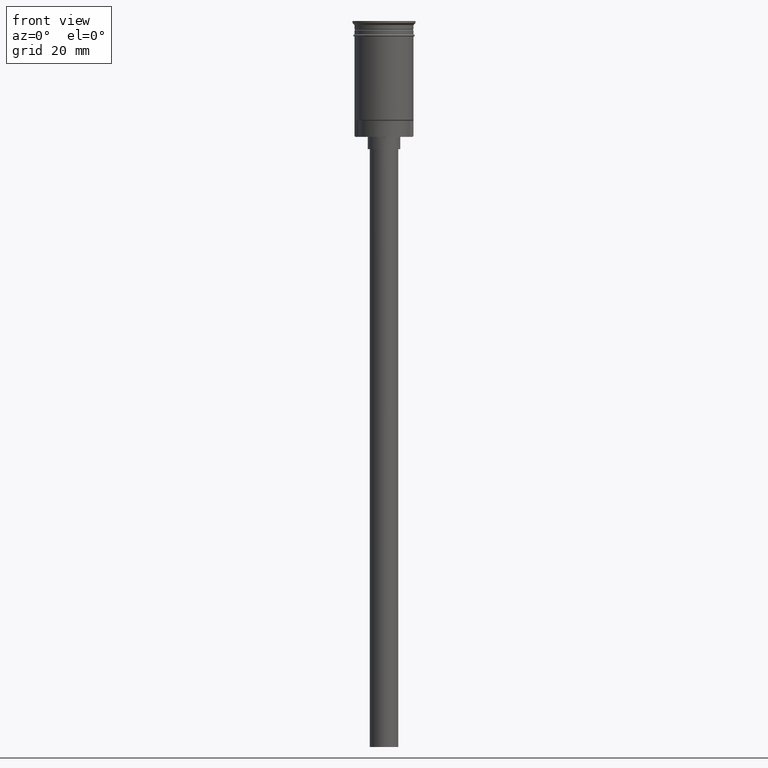
[diagram: clean part render]
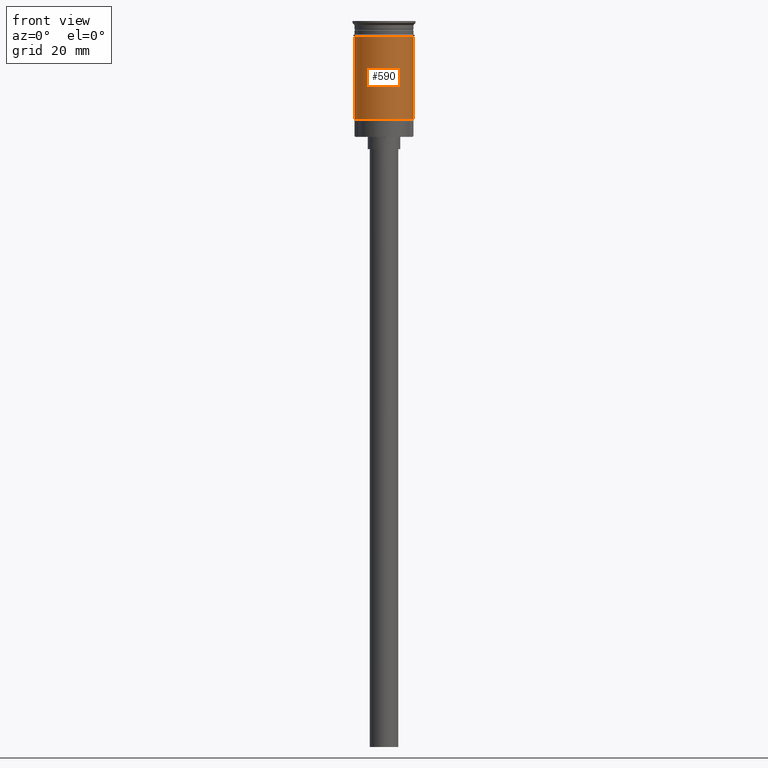
[diagram: same view with one face highlighted and labeled with its STEP entity id]
A machine part, front view. The second image highlights one B-rep face of the part: STEP entity #590.
In plain terms, the highlighted cylindrical surface (edge-blend (fillet) strip) has radius 7.25 mm, axis along (-0, -0, 1).
Its self-contained STEP definition (entity closure, byte-faithful):
#1 = EDGE_CURVE ( 'NONE', #969, #769, #1553, .T. ) ;
#41 = DIRECTION ( 'NONE',  ( -1.000000000000000000, 0.000000000000000000, 0.000000000000000000 ) ) ;
#56 = CARTESIAN_POINT ( 'NONE',  ( 7.249999999999997335, 0.000000000000000000, 0.000000000000000000 ) ) ;
#59 = AXIS2_PLACEMENT_3D ( 'NONE', #281, #121, #41 ) ;
#69 = DIRECTION ( 'NONE',  ( -0.000000000000000000, -0.000000000000000000, 1.000000000000000000 ) ) ;
#118 = CIRCLE ( 'NONE', #268, 7.249999999999999112 ) ;
#121 = DIRECTION ( 'NONE',  ( -0.000000000000000000, -0.000000000000000000, 1.000000000000000000 ) ) ;
#231 = CARTESIAN_POINT ( 'NONE',  ( -7.249999999999994671, 0.000000000000000000, -24.29999999999999361 ) ) ;
#258 = CARTESIAN_POINT ( 'NONE',  ( 0.000000000000000000, 0.000000000000000000, 0.000000000000000000 ) ) ;
#268 = AXIS2_PLACEMENT_3D ( 'NONE', #820, #69, #1066 ) ;
#281 = CARTESIAN_POINT ( 'NONE',  ( 0.000000000000000000, 0.000000000000000000, -24.29999999999999361 ) ) ;
#306 = EDGE_LOOP ( 'NONE', ( #894, #1407, #1398, #575 ) ) ;
#319 = CARTESIAN_POINT ( 'NONE',  ( -7.250000000000000000, 8.878689293818310074E-16, -3.799999999999998490 ) ) ;
#340 = LINE ( 'NONE', #723, #479 ) ;
#355 = DIRECTION ( 'NONE',  ( -0.000000000000000000, -0.000000000000000000, 1.000000000000000000 ) ) ;
#475 = VECTOR ( 'NONE', #355, 1000.000000000000000 ) ;
#479 = VECTOR ( 'NONE', #856, 1000.000000000000000 ) ;
#575 = ORIENTED_EDGE ( 'NONE', *, *, #845, .F. ) ;
#590 = ADVANCED_FACE ( 'NONE', ( #1363 ), #1037, .T. ) ;
#625 = DIRECTION ( 'NONE',  ( -0.000000000000000000, -0.000000000000000000, 1.000000000000000000 ) ) ;
#723 = CARTESIAN_POINT ( 'NONE',  ( -7.249999999999997335, 8.878689293818306130E-16, 0.000000000000000000 ) ) ;
#769 = VERTEX_POINT ( 'NONE', #1538 ) ;
#820 = CARTESIAN_POINT ( 'NONE',  ( 0.000000000000000000, 0.000000000000000000, -3.799999999999998490 ) ) ;
#845 = EDGE_CURVE ( 'NONE', #1163, #769, #118, .T. ) ;
#856 = DIRECTION ( 'NONE',  ( -0.000000000000000000, -0.000000000000000000, 1.000000000000000000 ) ) ;
#881 = EDGE_CURVE ( 'NONE', #983, #1163, #340, .T. ) ;
#894 = ORIENTED_EDGE ( 'NONE', *, *, #881, .F. ) ;
#969 = VERTEX_POINT ( 'NONE', #1314 ) ;
#983 = VERTEX_POINT ( 'NONE', #231 ) ;
#1027 = DIRECTION ( 'NONE',  ( 1.000000000000000000, 0.000000000000000000, 0.000000000000000000 ) ) ;
#1037 = CYLINDRICAL_SURFACE ( 'NONE', #1429, 7.249999999999997335 ) ;
#1066 = DIRECTION ( 'NONE',  ( 1.000000000000000000, 0.000000000000000000, 0.000000000000000000 ) ) ;
#1163 = VERTEX_POINT ( 'NONE', #319 ) ;
#1314 = CARTESIAN_POINT ( 'NONE',  ( 7.249999999999997335, 8.878689293818308102E-16, -24.29999999999999361 ) ) ;
#1363 = FACE_OUTER_BOUND ( 'NONE', #306, .T. ) ;
#1398 = ORIENTED_EDGE ( 'NONE', *, *, #1, .T. ) ;
#1407 = ORIENTED_EDGE ( 'NONE', *, *, #1545, .T. ) ;
#1429 = AXIS2_PLACEMENT_3D ( 'NONE', #258, #625, #1027 ) ;
#1538 = CARTESIAN_POINT ( 'NONE',  ( 7.249999999999999112, 0.000000000000000000, -3.799999999999998490 ) ) ;
#1545 = EDGE_CURVE ( 'NONE', #983, #969, #1581, .T. ) ;
#1553 = LINE ( 'NONE', #56, #475 ) ;
#1581 = CIRCLE ( 'NONE', #59, 7.249999999999997335 ) ;